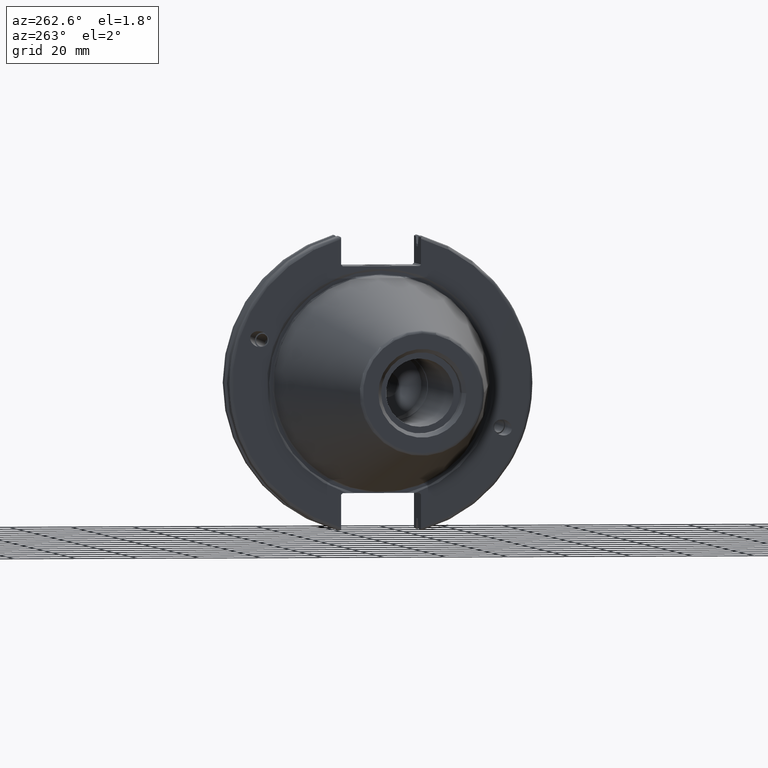
[diagram: clean part render]
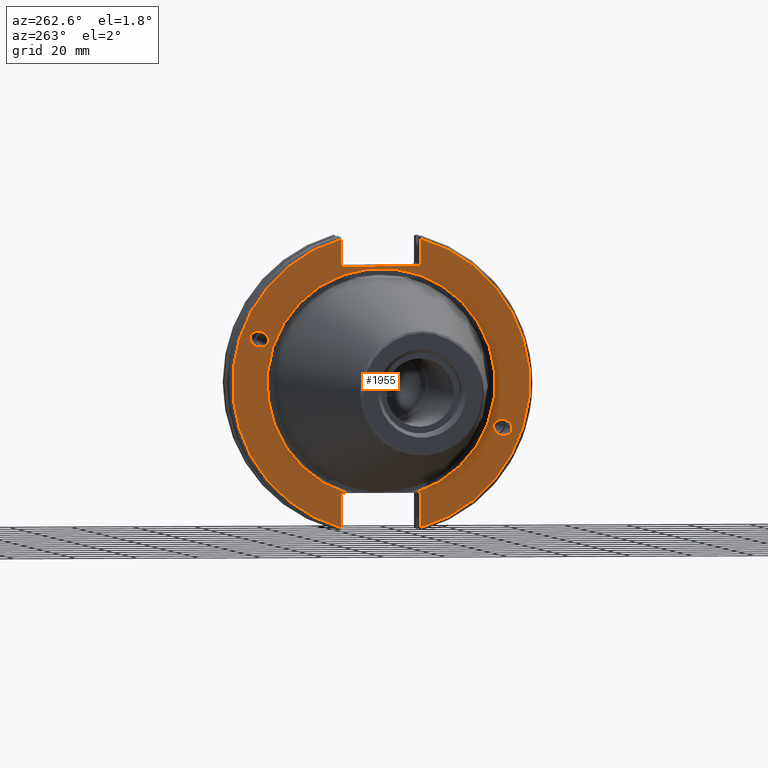
[diagram: same view with one face highlighted and labeled with its STEP entity id]
A machine part, auxiliary view. The second image highlights one B-rep face of the part: STEP entity #1955.
In plain terms, the highlighted planar face has unit normal (-1, 0, 0).
Its self-contained STEP definition (entity closure, byte-faithful):
#33=ELLIPSE('',#2141,3.05193647190365,2.50000000000001);
#34=ELLIPSE('',#2176,3.05193647190365,2.50000000000001);
#87=FACE_BOUND('',#592,.T.);
#88=FACE_BOUND('',#593,.T.);
#111=PLANE('',#2199);
#211=LINE('',#3663,#317);
#214=LINE('',#3713,#320);
#222=LINE('',#3749,#328);
#226=LINE('',#3817,#332);
#227=LINE('',#3819,#333);
#228=LINE('',#3821,#334);
#229=LINE('',#3822,#335);
#230=LINE('',#3824,#336);
#231=LINE('',#3826,#337);
#232=LINE('',#3830,#338);
#233=LINE('',#3831,#339);
#317=VECTOR('',#2662,10.);
#320=VECTOR('',#2671,10.);
#328=VECTOR('',#2681,10.);
#332=VECTOR('',#2707,10.);
#333=VECTOR('',#2708,10.);
#334=VECTOR('',#2709,10.);
#335=VECTOR('',#2710,10.);
#336=VECTOR('',#2711,10.);
#337=VECTOR('',#2712,10.);
#338=VECTOR('',#2715,10.);
#339=VECTOR('',#2716,10.);
#469=FACE_OUTER_BOUND('',#591,.T.);
#591=EDGE_LOOP('',(#1683,#1684,#1685,#1686,#1687,#1688,#1689,#1690,#1691,
#1692,#1693,#1694,#1695,#1696));
#592=EDGE_LOOP('',(#1697));
#593=EDGE_LOOP('',(#1698));
#739=CIRCLE('',#2191,48.2125);
#742=CIRCLE('',#2198,48.2125);
#743=CIRCLE('',#2200,37.);
#864=VERTEX_POINT('',#3342);
#903=VERTEX_POINT('',#3606);
#912=VERTEX_POINT('',#3660);
#913=VERTEX_POINT('',#3662);
#919=VERTEX_POINT('',#3710);
#920=VERTEX_POINT('',#3712);
#928=VERTEX_POINT('',#3741);
#929=VERTEX_POINT('',#3748);
#937=VERTEX_POINT('',#3807);
#938=VERTEX_POINT('',#3816);
#939=VERTEX_POINT('',#3818);
#940=VERTEX_POINT('',#3820);
#941=VERTEX_POINT('',#3823);
#942=VERTEX_POINT('',#3825);
#943=VERTEX_POINT('',#3827);
#944=VERTEX_POINT('',#3829);
#1101=EDGE_CURVE('',#864,#864,#33,.T.);
#1154=EDGE_CURVE('',#903,#903,#34,.T.);
#1168=EDGE_CURVE('',#913,#912,#211,.T.);
#1178=EDGE_CURVE('',#920,#919,#214,.T.);
#1190=EDGE_CURVE('',#929,#928,#222,.T.);
#1195=EDGE_CURVE('',#920,#928,#739,.T.);
#1204=EDGE_CURVE('',#913,#937,#742,.T.);
#1206=EDGE_CURVE('',#938,#919,#226,.T.);
#1207=EDGE_CURVE('',#938,#939,#227,.T.);
#1208=EDGE_CURVE('',#940,#939,#228,.T.);
#1209=EDGE_CURVE('',#940,#937,#229,.T.);
#1210=EDGE_CURVE('',#941,#912,#230,.T.);
#1211=EDGE_CURVE('',#941,#942,#231,.T.);
#1212=EDGE_CURVE('',#942,#943,#743,.T.);
#1213=EDGE_CURVE('',#943,#944,#232,.T.);
#1214=EDGE_CURVE('',#929,#944,#233,.T.);
#1683=ORIENTED_EDGE('',*,*,#1195,.F.);
#1684=ORIENTED_EDGE('',*,*,#1178,.T.);
#1685=ORIENTED_EDGE('',*,*,#1206,.F.);
#1686=ORIENTED_EDGE('',*,*,#1207,.T.);
#1687=ORIENTED_EDGE('',*,*,#1208,.F.);
#1688=ORIENTED_EDGE('',*,*,#1209,.T.);
#1689=ORIENTED_EDGE('',*,*,#1204,.F.);
#1690=ORIENTED_EDGE('',*,*,#1168,.T.);
#1691=ORIENTED_EDGE('',*,*,#1210,.F.);
#1692=ORIENTED_EDGE('',*,*,#1211,.T.);
#1693=ORIENTED_EDGE('',*,*,#1212,.T.);
#1694=ORIENTED_EDGE('',*,*,#1213,.T.);
#1695=ORIENTED_EDGE('',*,*,#1214,.F.);
#1696=ORIENTED_EDGE('',*,*,#1190,.T.);
#1697=ORIENTED_EDGE('',*,*,#1101,.T.);
#1698=ORIENTED_EDGE('',*,*,#1154,.T.);
#1955=ADVANCED_FACE('',(#469,#87,#88),#111,.T.);
#2141=AXIS2_PLACEMENT_3D('',#3344,#2553,#2554);
#2176=AXIS2_PLACEMENT_3D('',#3608,#2639,#2640);
#2191=AXIS2_PLACEMENT_3D('',#3771,#2687,#2688);
#2198=AXIS2_PLACEMENT_3D('',#3808,#2703,#2704);
#2199=AXIS2_PLACEMENT_3D('',#3815,#2705,#2706);
#2200=AXIS2_PLACEMENT_3D('',#3828,#2713,#2714);
#2553=DIRECTION('center_axis',(1.,0.,0.));
#2554=DIRECTION('ref_axis',(0.,-0.939692620785909,-0.342020143325667));
#2639=DIRECTION('center_axis',(1.,0.,0.));
#2640=DIRECTION('ref_axis',(0.,0.939692620785909,0.342020143325667));
#2662=DIRECTION('',(0.,0.,1.));
#2671=DIRECTION('',(0.,0.,-1.));
#2681=DIRECTION('',(0.,0.,-1.));
#2687=DIRECTION('center_axis',(1.,0.,0.));
#2688=DIRECTION('ref_axis',(0.,-1.,1.60812264967664E-16));
#2703=DIRECTION('center_axis',(1.,0.,0.));
#2704=DIRECTION('ref_axis',(0.,1.,-6.12323399573677E-17));
#2705=DIRECTION('center_axis',(-1.,0.,0.));
#2706=DIRECTION('ref_axis',(0.,0.,1.));
#2707=DIRECTION('',(0.,-0.707106781186549,0.707106781186546));
#2708=DIRECTION('',(0.,1.,0.));
#2709=DIRECTION('',(0.,-0.707106781186549,-0.707106781186546));
#2710=DIRECTION('',(0.,0.,1.));
#2711=DIRECTION('',(0.,0.707106781186548,-0.707106781186548));
#2712=DIRECTION('',(0.,-1.,0.));
#2713=DIRECTION('center_axis',(1.,0.,0.));
#2714=DIRECTION('ref_axis',(0.,0.,-1.));
#2715=DIRECTION('',(0.,-1.,0.));
#2716=DIRECTION('',(0.,0.707106781186549,0.707106781186546));
#3342=CARTESIAN_POINT('',(1.5,-36.5992078912529,-13.3210222701368));
#3344=CARTESIAN_POINT('Origin',(1.5,-39.4670900730082,-14.3648460196781));
#3606=CARTESIAN_POINT('',(1.5,36.5992078912529,13.3210222701368));
#3608=CARTESIAN_POINT('Origin',(1.5,39.4670900730082,14.3648460196781));
#3660=CARTESIAN_POINT('',(1.5,12.95,-35.806));
#3662=CARTESIAN_POINT('',(1.5,12.95,-46.4407434937254));
#3663=CARTESIAN_POINT('',(1.5,12.95,-17.653));
#3710=CARTESIAN_POINT('',(1.5,-12.95,38.219));
#3712=CARTESIAN_POINT('',(1.5,-12.95,46.4407434937254));
#3713=CARTESIAN_POINT('',(1.5,-12.95,18.8595));
#3741=CARTESIAN_POINT('',(1.5,-12.95,-46.4407434937254));
#3748=CARTESIAN_POINT('',(1.5,-12.95,-35.806));
#3749=CARTESIAN_POINT('',(1.5,-12.95,-17.653));
#3771=CARTESIAN_POINT('Origin',(1.5,0.,0.));
#3807=CARTESIAN_POINT('',(1.5,12.95,46.4407434937254));
#3808=CARTESIAN_POINT('Origin',(1.5,0.,0.));
#3815=CARTESIAN_POINT('Origin',(1.5,49.2125,0.));
#3816=CARTESIAN_POINT('',(1.5,-12.45,37.719));
#3817=CARTESIAN_POINT('',(1.5,12.2703750000001,12.998625));
#3818=CARTESIAN_POINT('',(1.5,12.45,37.719));
#3819=CARTESIAN_POINT('',(1.5,24.60625,37.719));
#3820=CARTESIAN_POINT('',(1.5,12.95,38.219));
#3821=CARTESIAN_POINT('',(1.5,12.335875,37.604875));
#3822=CARTESIAN_POINT('',(1.5,12.95,18.8595));
#3823=CARTESIAN_POINT('',(1.5,12.45,-35.306));
#3824=CARTESIAN_POINT('',(1.5,12.939125,-35.795125));
#3825=CARTESIAN_POINT('',(1.49999999999999,11.0673557817575,-35.306));
#3826=CARTESIAN_POINT('',(1.5,24.60625,-35.306));
#3827=CARTESIAN_POINT('',(1.5,-11.0673557817575,-35.306));
#3828=CARTESIAN_POINT('Origin',(1.5,0.,0.));
#3829=CARTESIAN_POINT('',(1.5,-12.45,-35.306));
#3830=CARTESIAN_POINT('',(1.5,24.60625,-35.306));
#3831=CARTESIAN_POINT('',(1.5,11.6671250000001,-11.188875));